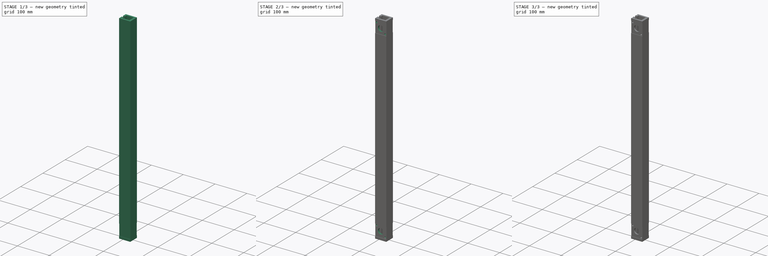
[diagram: build sequence overview — one tinted view per stage of 3, left to right]
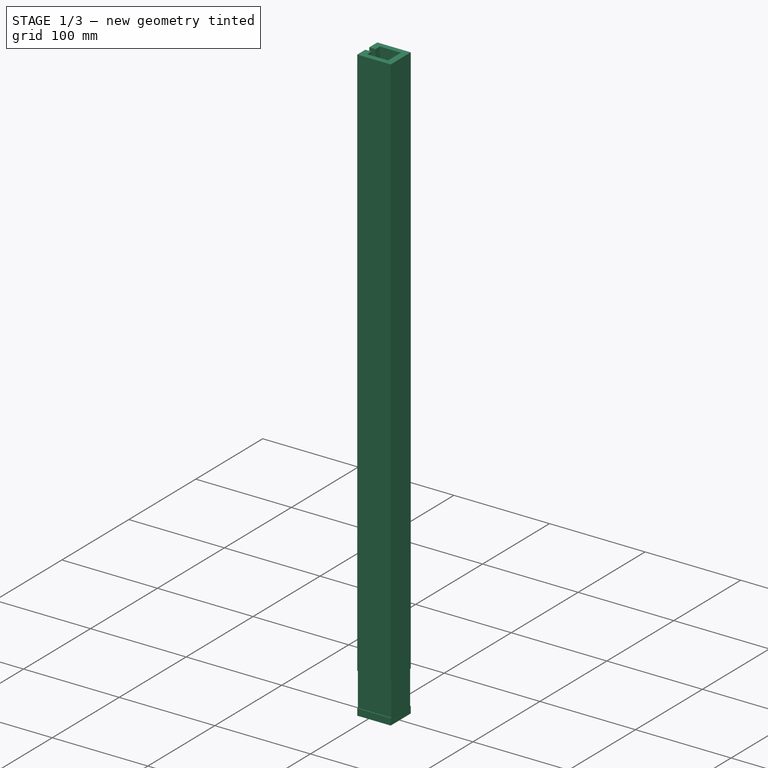
[diagram: stage 1 of 3 — iso view after this stage's code; geometry added in this stage tinted green]
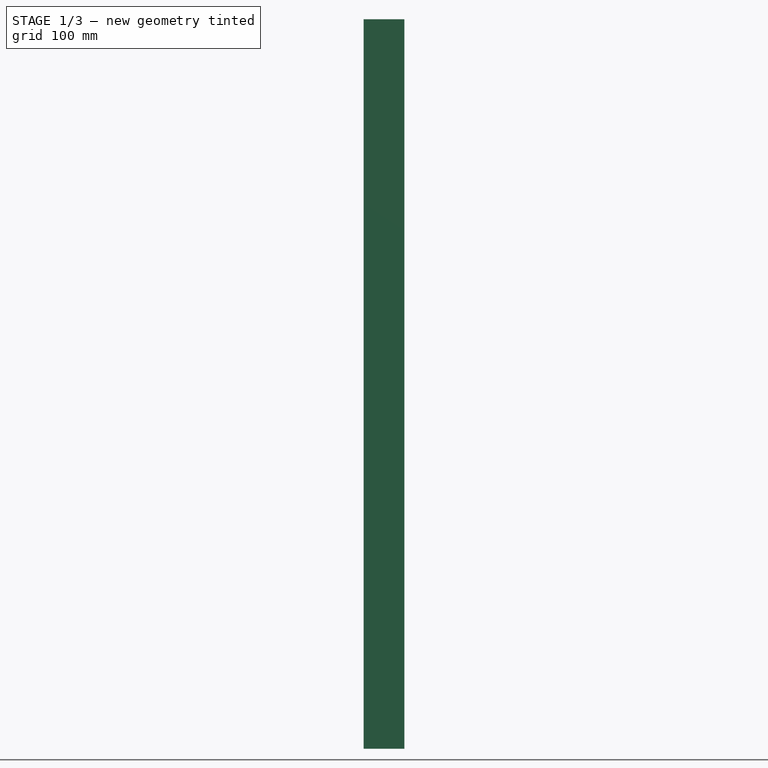
[diagram: stage 1 of 3 — front view after this stage's code; geometry added in this stage tinted green]
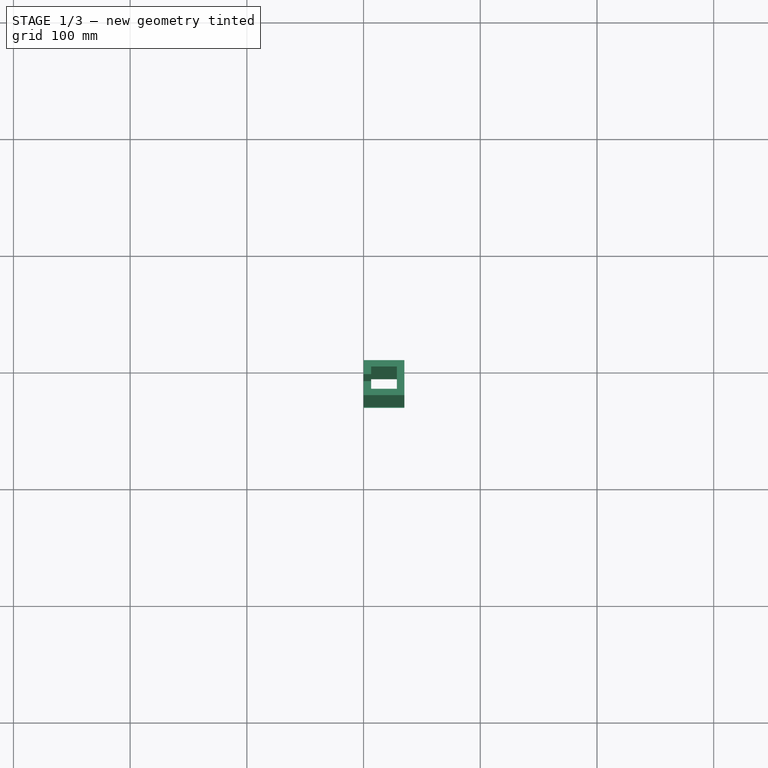
[diagram: stage 1 of 3 — top view after this stage's code; geometry added in this stage tinted green]
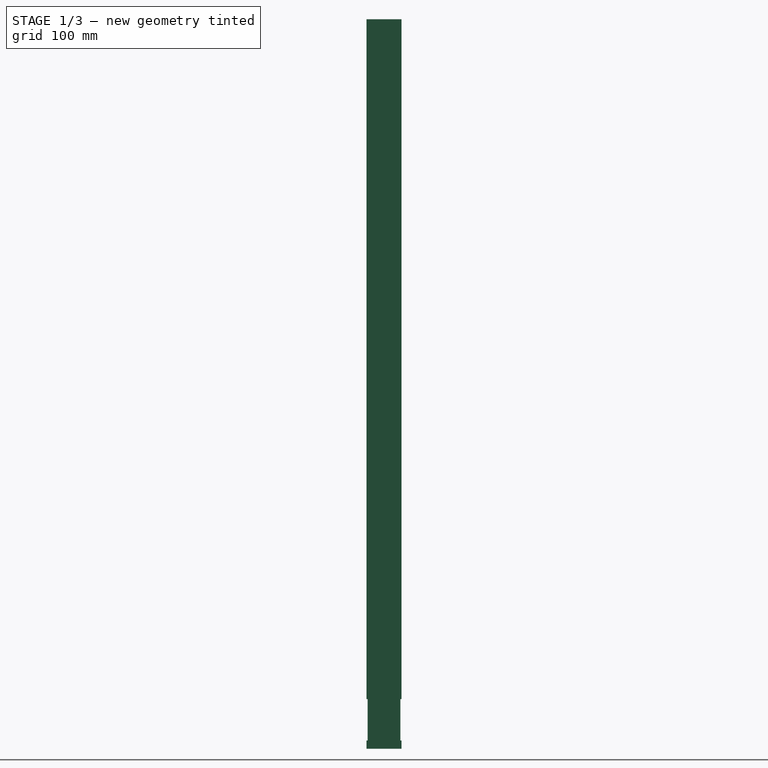
[diagram: stage 1 of 3 — right view after this stage's code; geometry added in this stage tinted green]
FCSTD DOCUMENT  (FreeCAD 0.21R33771 (Git))
Label: wellhofer-vertical-belt-drive-cover-right
License: All rights reserved
LicenseURL: https://en.wikipedia.org/wiki/All_rights_reserved
objects: Sketcher::SketchObject×7, PartDesign::Pocket×4, PartDesign::Hole×2, PartDesign::Pad×1, PartDesign::Body×1
note: 22 computed .brp shape members not serialized (recipe doc carries the construction recipe); baked Part::Feature solids carry a one-line shape summary decoded from their .brp

FEATURE [Sketcher::SketchObject] Sketch
  FullyConstrained = true
  MapMode = 5
  Support = -> [XY_Plane]
  sketch-geometry (12):
    g0: LineSegment StartX=0 StartY=0 StartZ=0 EndX=35 EndY=0 EndZ=0
    g1: LineSegment StartX=35 StartY=0 StartZ=0 EndX=35 EndY=-30 EndZ=0
    g2: LineSegment StartX=35 StartY=-30 StartZ=0 EndX=0 EndY=-30 EndZ=0
    g3: LineSegment StartX=0 StartY=-30 StartZ=0 EndX=0 EndY=-18 EndZ=0
    g4: LineSegment StartX=0 StartY=-18 StartZ=0 EndX=6.5 EndY=-18 EndZ=0
    g5: LineSegment StartX=6.5 StartY=-18 StartZ=0 EndX=6.5 EndY=-24.5 EndZ=0
    g6: LineSegment StartX=6.5 StartY=-24.5 StartZ=0 EndX=28.5 EndY=-24.5 EndZ=0
    g7: LineSegment StartX=28.5 StartY=-24.5 StartZ=0 EndX=28.5 EndY=-5.5 EndZ=0
    g8: LineSegment StartX=28.5 StartY=-5.5 StartZ=0 EndX=6.5 EndY=-5.5 EndZ=0
    g9: LineSegment StartX=6.5 StartY=-5.5 StartZ=0 EndX=6.5 EndY=-12 EndZ=0
    g10: LineSegment StartX=6.5 StartY=-12 StartZ=0 EndX=0 EndY=-12 EndZ=0
    g11: LineSegment StartX=0 StartY=0 StartZ=0 EndX=0 EndY=-12 EndZ=0
  constraints (35):
    c: Coincident(g0,g-1)
    c: Coincident(g1,g0)
    c: Horizontal(g2)
    c: Vertical(g3)
    c: Horizontal(g4)
    c: Vertical(g5)
    c: Horizontal(g6)
    c: Coincident(g11,g0)
    c: Coincident(g11,g10)
    c: DistanceX(g8,g8) = 22
    c: DistanceX(g6,g6) = 22
    c: DistanceY(g7,g7) = 19
    c: DistanceY(g9,g9) = 6.5
    c: DistanceY(g5,g5) = 6.5
    c: DistanceY(g3,g3) = 12
    c: DistanceY(g11,g11) = 12
    c: DistanceY(g1,g1) = 30
    c: DistanceX(g2,g2) = 35
    c: DistanceX(g10,g10) = 6.5
    c: Horizontal(g10)
    c: DistanceX(g4,g4) = 6.5
    c: Coincident(g4,g3)
    c: Coincident(g3,g2)
    c: Coincident(g5,g6)
    c: Coincident(g2,g1)
    c: Vertical(g11)
    c: Vertical(g9)
    c: Vertical(g7)
    c: Vertical(g1)
    c: Horizontal(g8)
    c: Coincident(g5,g4)
    c: Coincident(g10,g9)
    c: Coincident(g9,g8)
    c: Coincident(g8,g7)
    c: Coincident(g6,g7)
FEATURE [PartDesign::Pad] Pad
  Direction = (0,0,1)
  Length = 625
  Length2 = 10
  Profile = -> Sketch
  ReferenceAxis = -> Sketch [N_Axis]
  Type = 0
FEATURE [Sketcher::SketchObject] Sketch001
  FullyConstrained = true
  MapMode = 5
  Placement = pos=(0,0,0) rot=(0.57735,-0.57735,-0.57735;2.0944rad)
  sketch-geometry (8):
    g0: LineSegment StartX=0 StartY=42.5 StartZ=0 EndX=1 EndY=42.5 EndZ=0
    g1: LineSegment StartX=1 StartY=42.5 StartZ=0 EndX=1 EndY=7 EndZ=0
    g2: LineSegment StartX=1 StartY=7 StartZ=0 EndX=0 EndY=7 EndZ=0
    g3: LineSegment StartX=0 StartY=7 StartZ=0 EndX=0 EndY=42.5 EndZ=0
    g4: LineSegment StartX=29 StartY=42.5 StartZ=0 EndX=30 EndY=42.5 EndZ=0
    g5: LineSegment StartX=30 StartY=42.5 StartZ=0 EndX=30 EndY=7 EndZ=0
    g6: LineSegment StartX=30 StartY=7 StartZ=0 EndX=29 EndY=7 EndZ=0
    g7: LineSegment StartX=29 StartY=7 StartZ=0 EndX=29 EndY=42.5 EndZ=0
  constraints (24):
    c: Coincident(g0,g1)
    c: Coincident(g1,g2)
    c: Coincident(g2,g3)
    c: Coincident(g3,g0)
    c: Horizontal(g0)
    c: Horizontal(g2)
    c: Vertical(g1)
    c: Vertical(g3)
    c: DistanceY(g1,g1) = 35.5
    c: Coincident(g4,g5)
    c: Coincident(g5,g6)
    c: Coincident(g6,g7)
    c: Coincident(g7,g4)
    c: Horizontal(g4)
    c: Horizontal(g6)
    c: Vertical(g5)
    c: Vertical(g7)
    c: DistanceY(g7,g7) = 35.5
    c: DistanceX(g0,g0) = 1
    c: DistanceX(g4,g4) = 1
    c: DistanceY(g-1,g2) = 7
    c: DistanceY(g-1,g5) = 7
    c: DistanceX(g2,g-1) = 0
    c: DistanceX(g-1,g6) = 29
FEATURE [PartDesign::Pocket] Pocket
  BaseFeature = -> Pad
  Direction = (1,0,0)
  Length = 35
  Length2 = 5
  Profile = -> Sketch001
  ReferenceAxis = -> Sketch001 [N_Axis]
  Type = 0
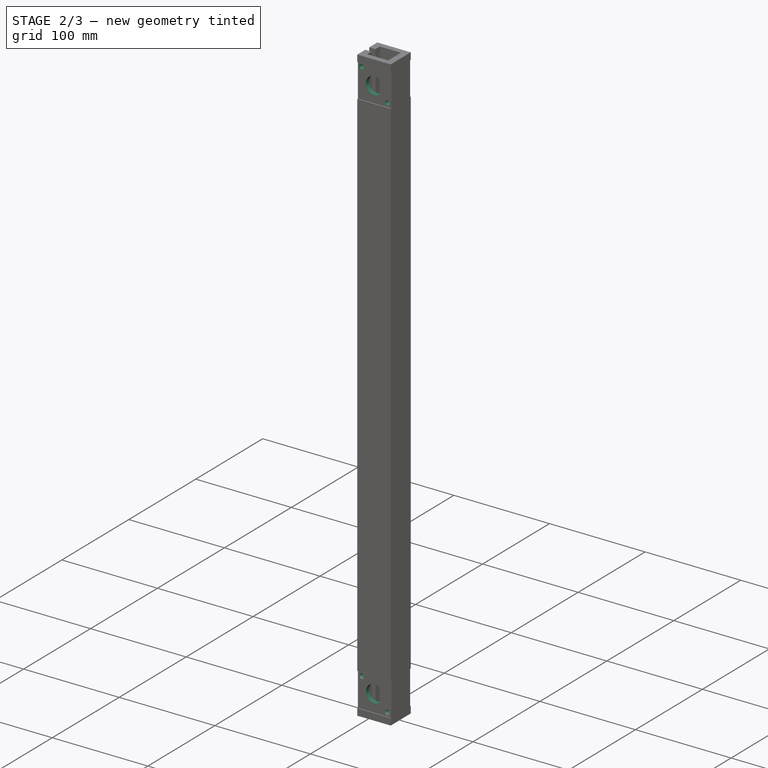
[diagram: stage 2 of 3 — iso view after this stage's code; geometry added in this stage tinted green]
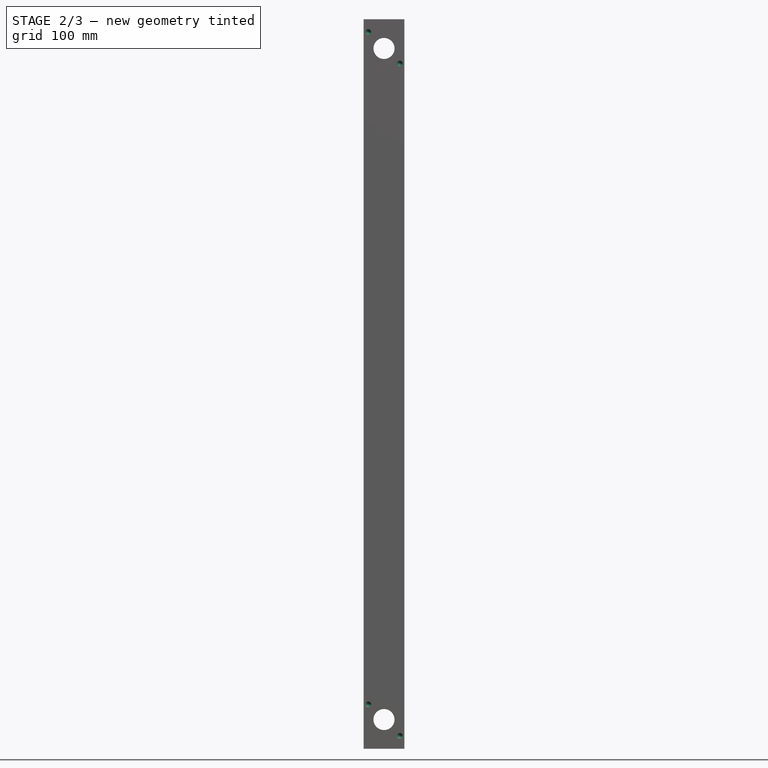
[diagram: stage 2 of 3 — front view after this stage's code; geometry added in this stage tinted green]
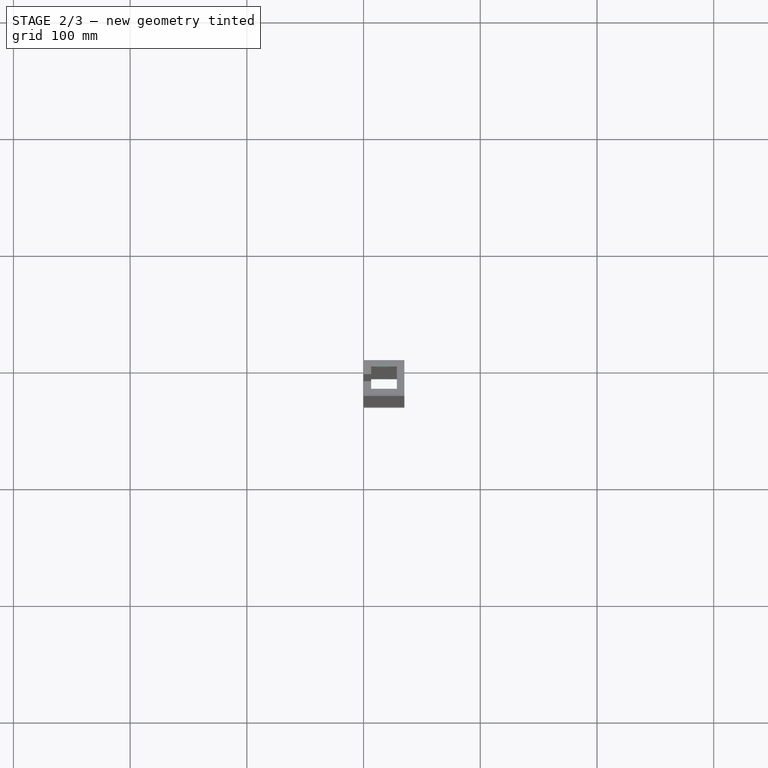
[diagram: stage 2 of 3 — top view after this stage's code; geometry added in this stage tinted green]
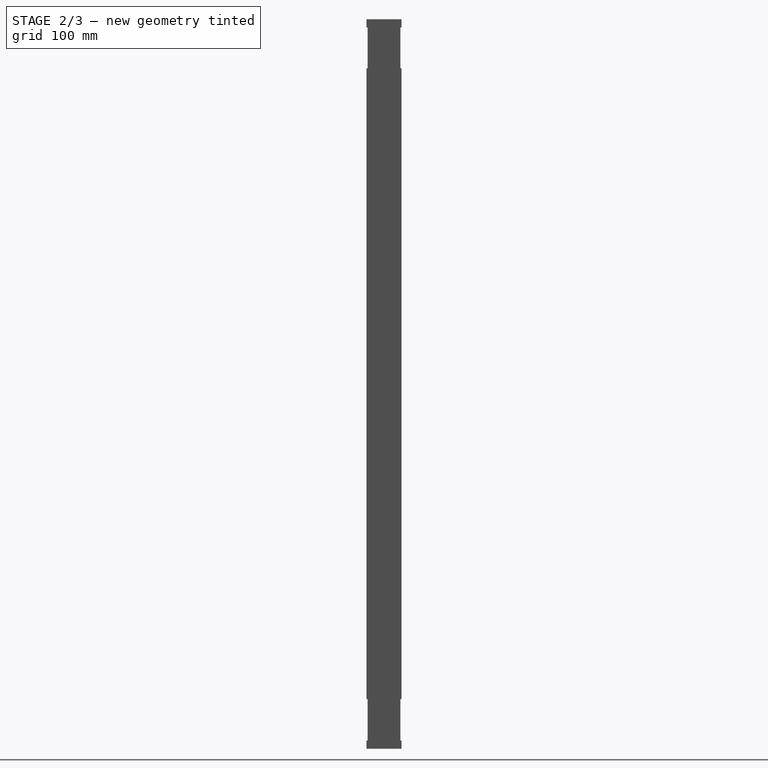
[diagram: stage 2 of 3 — right view after this stage's code; geometry added in this stage tinted green]
FEATURE [Sketcher::SketchObject] Sketch002
  FullyConstrained = true
  MapMode = 5
  Placement = pos=(0,0,0) rot=(0.57735,-0.57735,-0.57735;2.0944rad)
  sketch-geometry (8):
    g0: LineSegment StartX=30 StartY=618 StartZ=0 EndX=29 EndY=618 EndZ=0
    g1: LineSegment StartX=29 StartY=618 StartZ=0 EndX=29 EndY=583 EndZ=0
    g2: LineSegment StartX=29 StartY=583 StartZ=0 EndX=30 EndY=583 EndZ=0
    g3: LineSegment StartX=30 StartY=583 StartZ=0 EndX=30 EndY=618 EndZ=0
    g4: LineSegment StartX=0 StartY=618 StartZ=0 EndX=1 EndY=618 EndZ=0
    g5: LineSegment StartX=1 StartY=618 StartZ=0 EndX=1 EndY=583 EndZ=0
    g6: LineSegment StartX=1 StartY=583 StartZ=0 EndX=0 EndY=583 EndZ=0
    g7: LineSegment StartX=0 StartY=583 StartZ=0 EndX=0 EndY=618 EndZ=0
  constraints (24):
    c: Coincident(g0,g1)
    c: Coincident(g1,g2)
    c: Coincident(g2,g3)
    c: Coincident(g3,g0)
    c: Horizontal(g0)
    c: Horizontal(g2)
    c: Vertical(g1)
    c: Vertical(g3)
    c: Coincident(g4,g5)
    c: Coincident(g5,g6)
    c: Coincident(g6,g7)
    c: Coincident(g7,g4)
    c: Horizontal(g4)
    c: Horizontal(g6)
    c: Vertical(g5)
    c: Vertical(g7)
    c: PointOnObject(g4,g-2)
    c: DistanceY(g-1,g4) = 618
    c: DistanceY(g-1,g0) = 618
    c: DistanceX(g-1,g1) = 29
    c: DistanceX(g4,g4) = 1
    c: DistanceX(g0,g0) = 1
    c: DistanceY(g2,g0) = 35
    c: DistanceY(g5,g4) = 35
FEATURE [PartDesign::Pocket] Pocket001
  BaseFeature = -> Pocket
  Direction = (1,0,0)
  Length = 5
  Length2 = 5
  Profile = -> Sketch002
  ReferenceAxis = -> Sketch002 [N_Axis]
  Type = 1
FEATURE [Sketcher::SketchObject] Sketch003
  FullyConstrained = true
  MapMode = 5
  Placement = pos=(0,-29,0) rot=(1,0,0;1.5708rad)
  sketch-geometry (2):
    g0: Circle CenterX=17.5 CenterY=25 CenterZ=0 NormalX=0 NormalY=0 NormalZ=1 AngleXU=0 Radius=9
    g1: Circle CenterX=17.5 CenterY=600 CenterZ=0 NormalX=0 NormalY=0 NormalZ=1 AngleXU=0 Radius=9
  constraints (6):
    c: DistanceX(g-1,g0) = 17.5
    c: DistanceY(g-1,g0) = 25
    c: Diameter(g0) = 18
    c: Diameter(g1) = 18
    c: DistanceX(g-1,g1) = 17.5
    c: DistanceY(g-1,g1) = 600
FEATURE [PartDesign::Pocket] Pocket002
  BaseFeature = -> Pocket001
  Direction = (0,1,-2e-16)
  Length = 5
  Length2 = 5
  Profile = -> Sketch003
  ReferenceAxis = -> Sketch003 [N_Axis]
  Type = 1
FEATURE [Sketcher::SketchObject] Sketch004
  FullyConstrained = true
  MapMode = 5
  Placement = pos=(0,-29,0) rot=(1,0,0;1.5708rad)
  sketch-geometry (4):
    g0: Circle CenterX=4 CenterY=38 CenterZ=0 NormalX=0 NormalY=0 NormalZ=1 AngleXU=0 Radius=1.5
    g1: Circle CenterX=31 CenterY=11 CenterZ=0 NormalX=0 NormalY=0 NormalZ=1 AngleXU=0 Radius=1.5
    g2: Circle CenterX=4 CenterY=614 CenterZ=0 NormalX=0 NormalY=0 NormalZ=1 AngleXU=0 Radius=1.5
    g3: Circle CenterX=31 CenterY=587 CenterZ=0 NormalX=0 NormalY=0 NormalZ=1 AngleXU=0 Radius=1.5
  constraints (12):
    c: DistanceX(g-1,g0) = 4
    c: DistanceX(g-1,g1) = 31
    c: DistanceY(g-1,g1) = 11
    c: Diameter(g0) = 3
    c: Diameter(g1) = 3
    c: DistanceX(g-1,g2) = 4
    c: DistanceX(g-1,g3) = 31
    c: DistanceY(g-1,g2) = 614
    c: DistanceY(g-1,g3) = 587
    c: Diameter(g3) = 3
    c: Diameter(g2) = 3
    c: DistanceY(g-1,g0) = 38
FEATURE [PartDesign::Hole] Hole
  BaseFeature = -> Pocket002
  CustomThreadClearance = 0
  Depth = 8
  DepthType = 0
  Diameter = 2.5
  DrillForDepth = false
  DrillPoint = 1
  DrillPointAngle = 118
  HoleCutCountersinkAngle = 90
  HoleCutCustomValues = false
  HoleCutDepth = 1
  HoleCutDiameter = 5
  HoleCutType = 3
  ModelThread = false
  Profile = -> Sketch004
  Tapered = false
  TaperedAngle = 90
  ThreadClass = 0
  ThreadDepth = 8
  ThreadDepthType = 0
  ThreadDirection = 0
  ThreadFit = 0
  ThreadSize = 9
  ThreadType = 1
  Threaded = true
  UseCustomThreadClearance = false
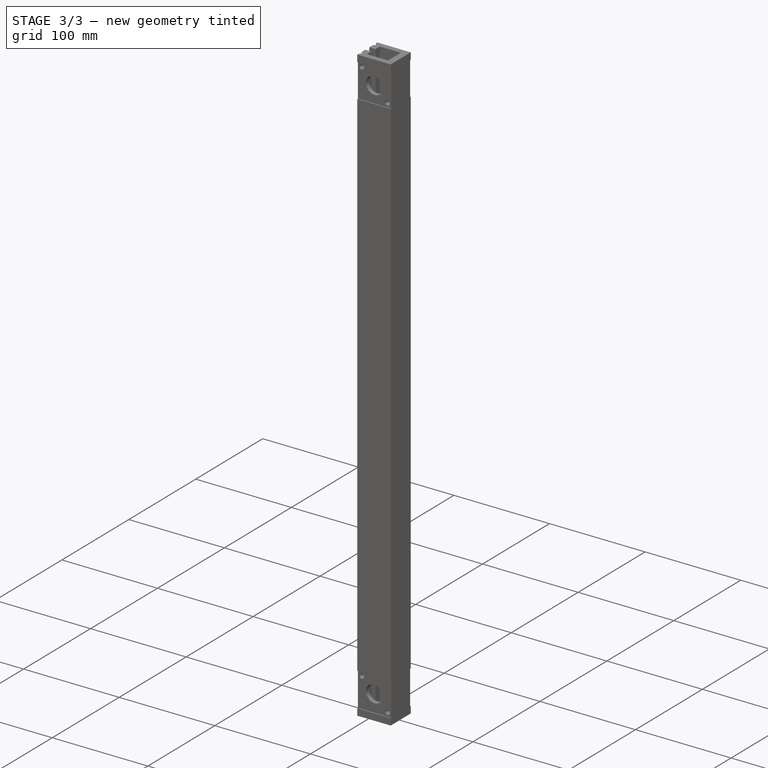
[diagram: stage 3 of 3 — iso view after this stage's code; geometry added in this stage tinted green]
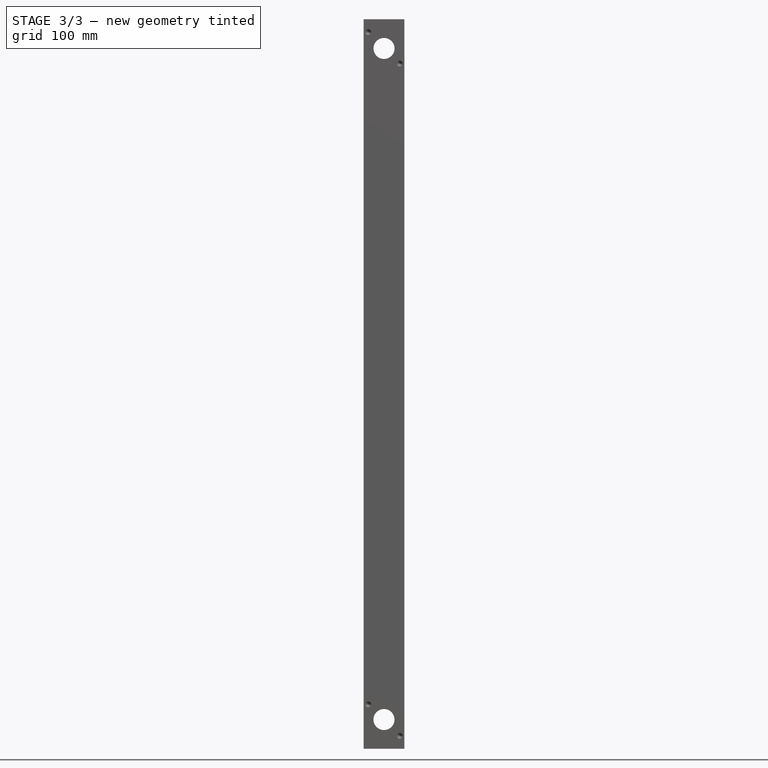
[diagram: stage 3 of 3 — front view after this stage's code; geometry added in this stage tinted green]
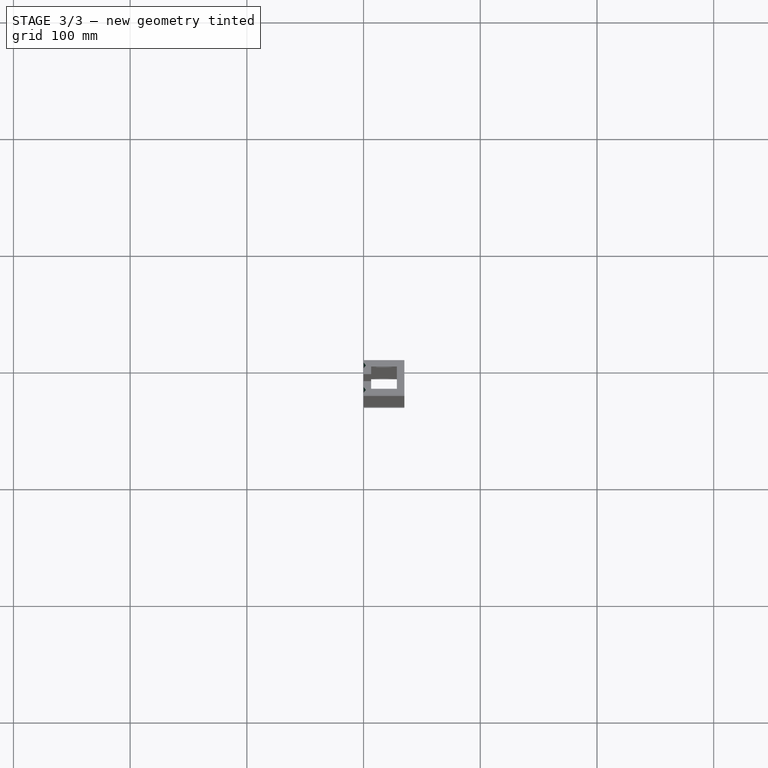
[diagram: stage 3 of 3 — top view after this stage's code; geometry added in this stage tinted green]
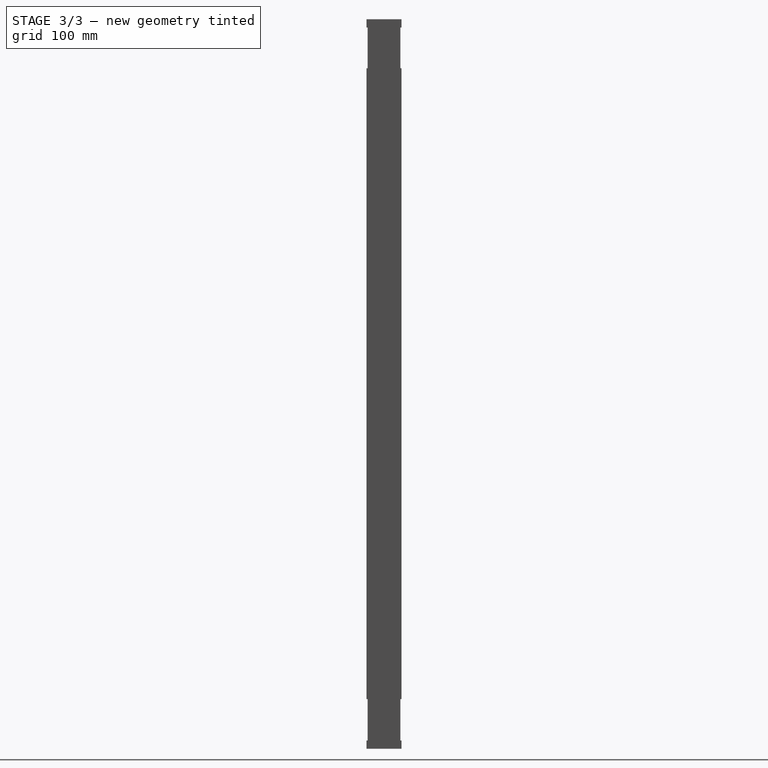
[diagram: stage 3 of 3 — right view after this stage's code; geometry added in this stage tinted green]
FEATURE [Sketcher::SketchObject] Sketch005
  FullyConstrained = true
  MapMode = 5
  Placement = pos=(0,-1,0) rot=(0,0.707107,0.707107;3.14159rad)
  Support = -> [Hole]
  sketch-geometry (4):
    g0: Circle CenterX=-4 CenterY=614 CenterZ=0 NormalX=0 NormalY=0 NormalZ=1 AngleXU=0 Radius=1.5
    g1: Circle CenterX=-31 CenterY=587 CenterZ=0 NormalX=0 NormalY=0 NormalZ=1 AngleXU=0 Radius=1.5
    g2: Circle CenterX=-4 CenterY=38 CenterZ=0 NormalX=0 NormalY=0 NormalZ=1 AngleXU=0 Radius=1.5
    g3: Circle CenterX=-31 CenterY=11 CenterZ=0 NormalX=0 NormalY=0 NormalZ=1 AngleXU=0 Radius=1.5
  constraints (12):
    c: DistanceX(g0,g-1) = 4
    c: DistanceX(g1,g-1) = 31
    c: DistanceY(g-1,g0) = 614
    c: DistanceY(g-1,g1) = 587
    c: Diameter(g0) = 3
    c: Diameter(g1) = 3
    c: DistanceX(g2,g-1) = 4
    c: DistanceX(g3,g-1) = 31
    c: DistanceY(g-1,g2) = 38
    c: DistanceY(g-1,g3) = 11
    c: Diameter(g3) = 3
    c: Diameter(g2) = 3
FEATURE [PartDesign::Hole] Hole001
  BaseFeature = -> Hole
  CustomThreadClearance = 0
  Depth = 8
  DepthType = 0
  Diameter = 2.5
  DrillForDepth = false
  DrillPoint = 1
  DrillPointAngle = 118
  HoleCutCountersinkAngle = 90
  HoleCutCustomValues = false
  HoleCutDepth = 1
  HoleCutDiameter = 5
  HoleCutType = 3
  ModelThread = false
  Profile = -> Sketch005
  Tapered = false
  TaperedAngle = 90
  ThreadClass = 0
  ThreadDepth = 8
  ThreadDepthType = 0
  ThreadDirection = 0
  ThreadFit = 0
  ThreadSize = 9
  ThreadType = 1
  Threaded = true
  UseCustomThreadClearance = false
FEATURE [Sketcher::SketchObject] Sketch006
  FullyConstrained = true
  MapMode = 5
  Placement = pos=(0,0,625) rot=(0,0,1;0rad)
  sketch-geometry (6):
    g0: LineSegment StartX=0 StartY=-2 StartZ=0 EndX=0 EndY=-7 EndZ=0
    g1: LineSegment StartX=0 StartY=-28 StartZ=0 EndX=0 EndY=-23 EndZ=0
    g2: LineSegment StartX=2 StartY=-25.5 StartZ=0 EndX=0 EndY=-23 EndZ=0
    g3: LineSegment StartX=2 StartY=-25.5 StartZ=0 EndX=0 EndY=-28 EndZ=0
    g4: LineSegment StartX=2 StartY=-4.5 StartZ=0 EndX=0 EndY=-2 EndZ=0
    g5: LineSegment StartX=2 StartY=-4.5 StartZ=0 EndX=0 EndY=-7 EndZ=0
  constraints (22):
    c: PointOnObject(g4,g-2)
    c: PointOnObject(g0,g-2)
    c: Vertical(g0)
    c: PointOnObject(g3,g-2)
    c: PointOnObject(g1,g-2)
    c: Vertical(g1)
    c: Coincident(g2,g1)
    c: Coincident(g5,g0)
    c: DistanceX(g-1,g3) = 2
    c: DistanceX(g-1,g4) = 2
    c: DistanceY(g3,g-1) = 25.5
    c: DistanceY(g2,g2) = 2.5
    c: DistanceY(g3,g3) = 2.5
    c: DistanceY(g1,g1) = 5
    c: DistanceY(g5,g5) = 2.5
    c: DistanceY(g4,g4) = 2.5
    c: DistanceY(g0,g0) = 5
    c: DistanceX(g5,g5) = 2
    c: DistanceX(g2,g2) = 2
    c: DistanceY(g2,g-1) = 25.5
    c: DistanceY(g4,g-1) = 4.5
    c: DistanceY(g0,g-1) = 7
FEATURE [PartDesign::Pocket] Pocket003
  BaseFeature = -> Hole001
  Direction = (0,0,-1)
  Length = 5
  Length2 = 5
  Profile = -> Sketch006
  ReferenceAxis = -> Sketch006 [N_Axis]
  Type = 1
FEATURE [PartDesign::Body] Body
  Group = -> [Sketch,Pad,Sketch001,Pocket,Sketch002,Pocket001,Sketch003,Pocket002,Sketch004,Hole,Sketch005,Hole001,Sketch006,Pocket003]
  Origin = -> Origin
  Placement = pos=(0,0,0) rot=(0,0,1;1.5708rad)
  Tip = -> Pocket003
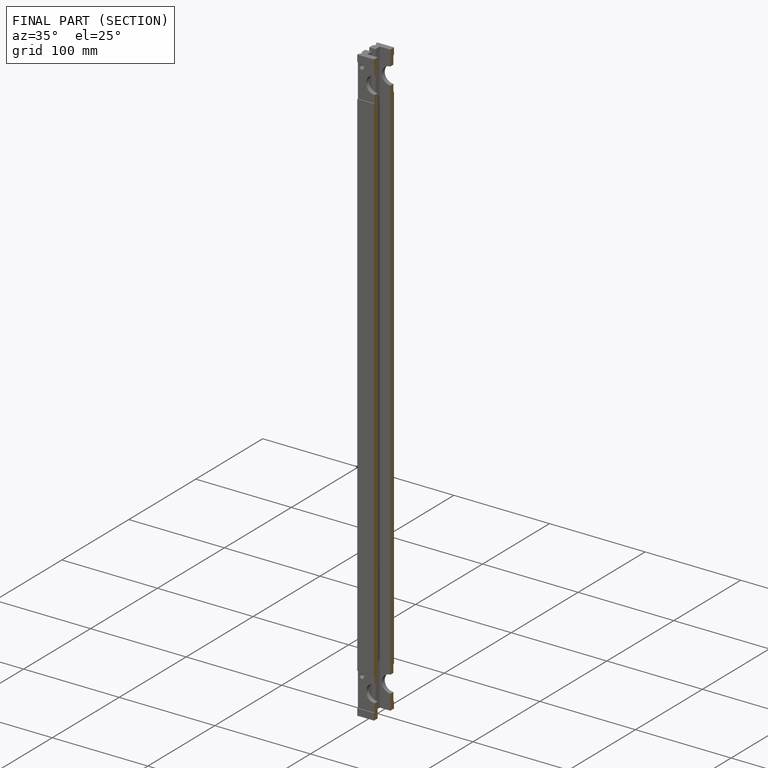
[diagram: finished part — half-section view (interior)]
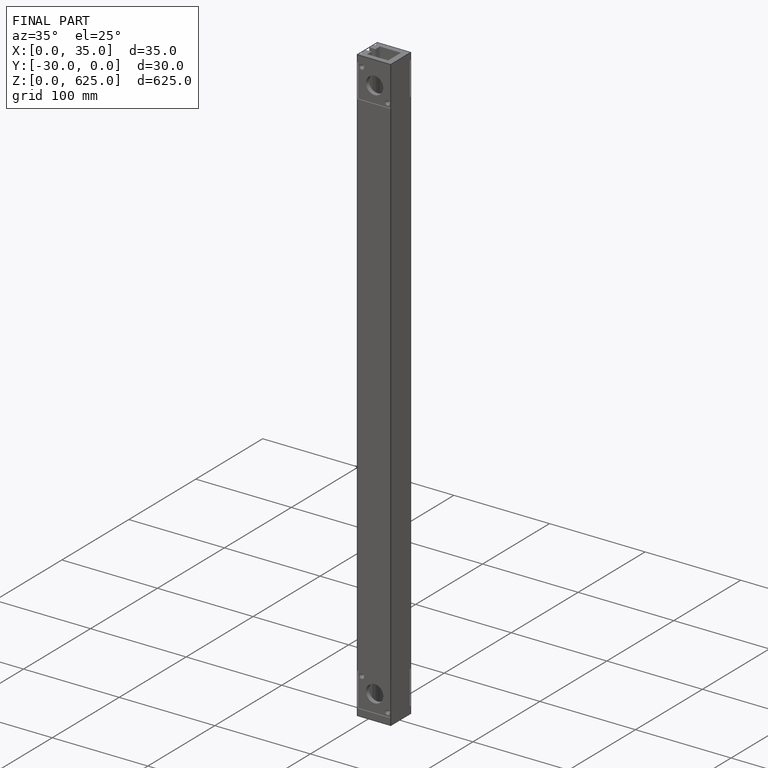
[diagram: finished part — iso view with bounding-box wireframe]
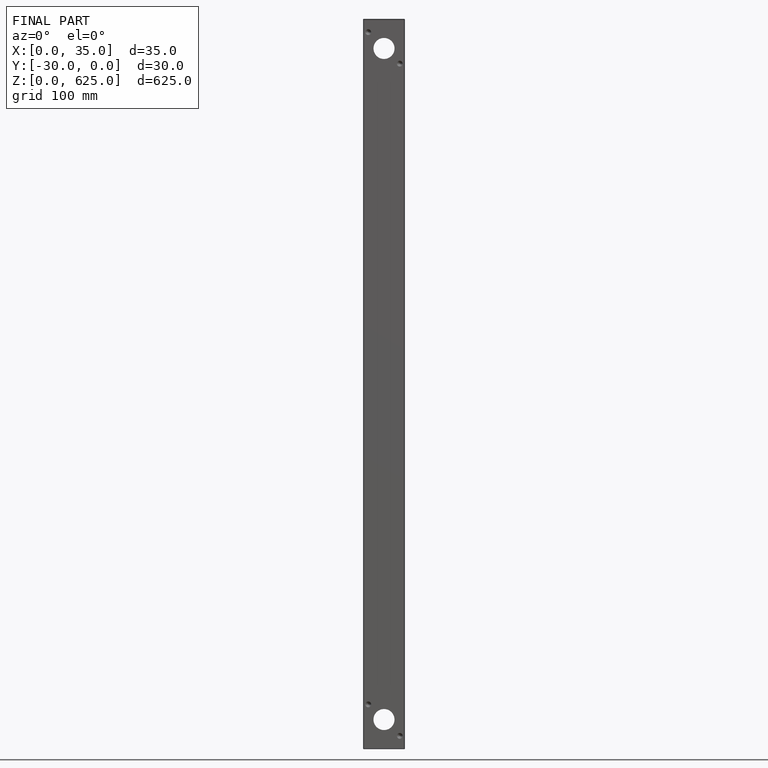
[diagram: finished part — front view with bounding-box wireframe]
